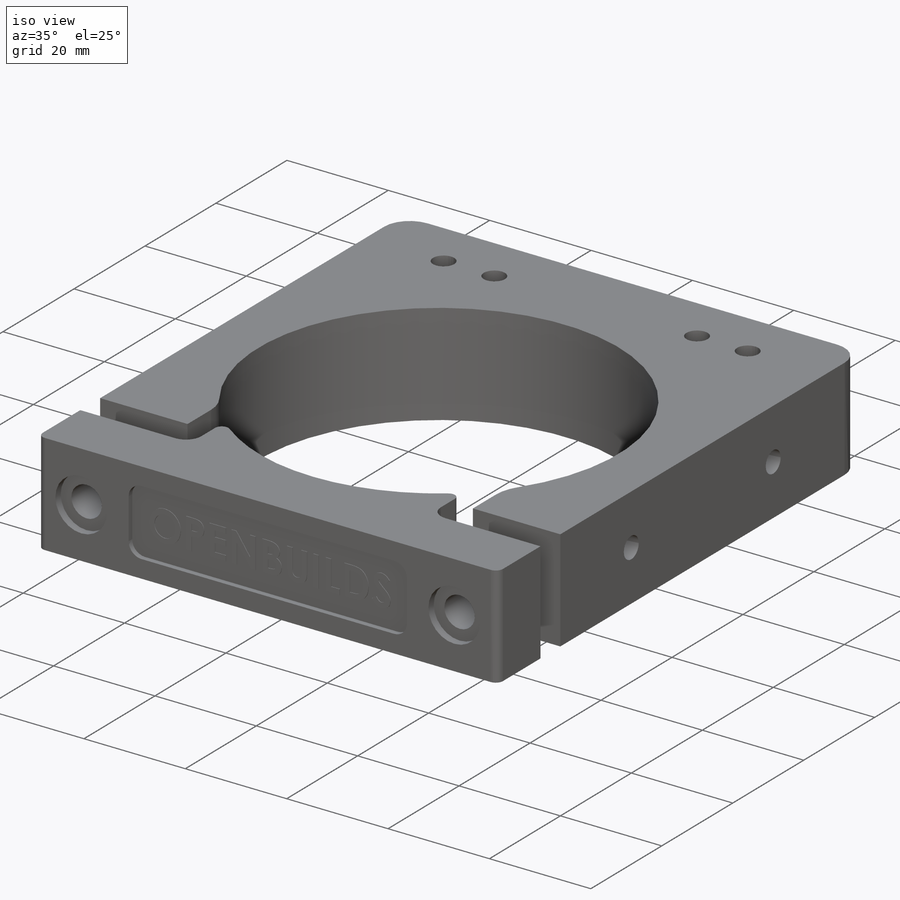
[diagram: iso view]
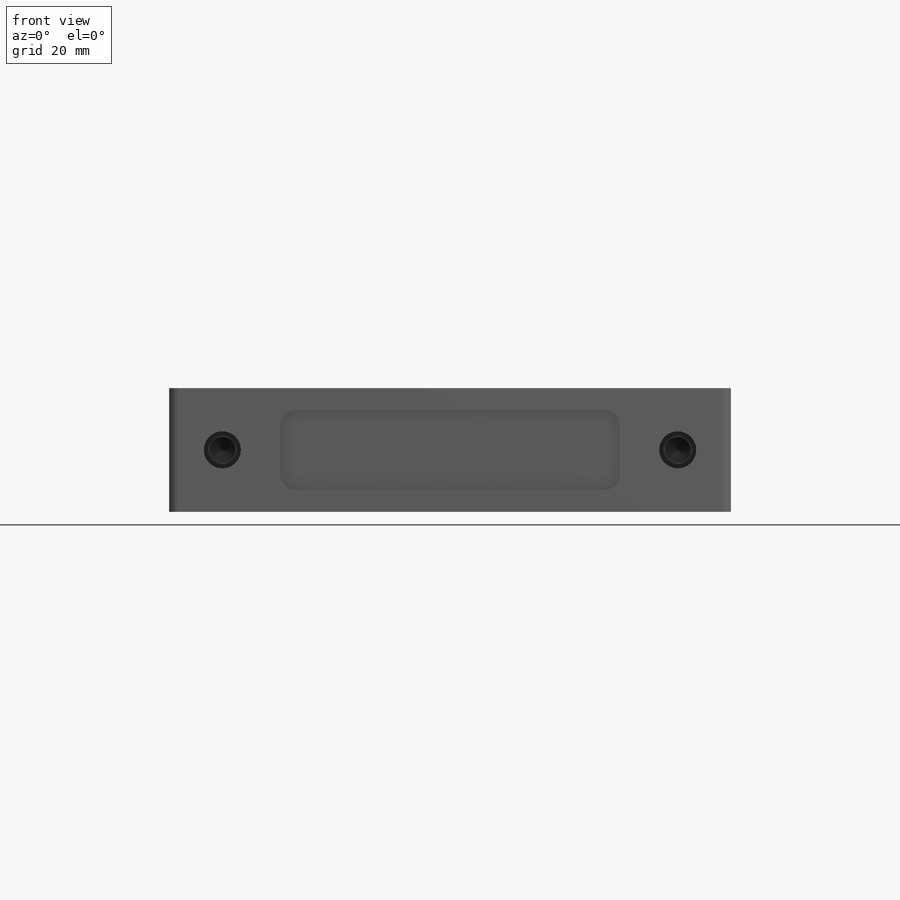
[diagram: front view]
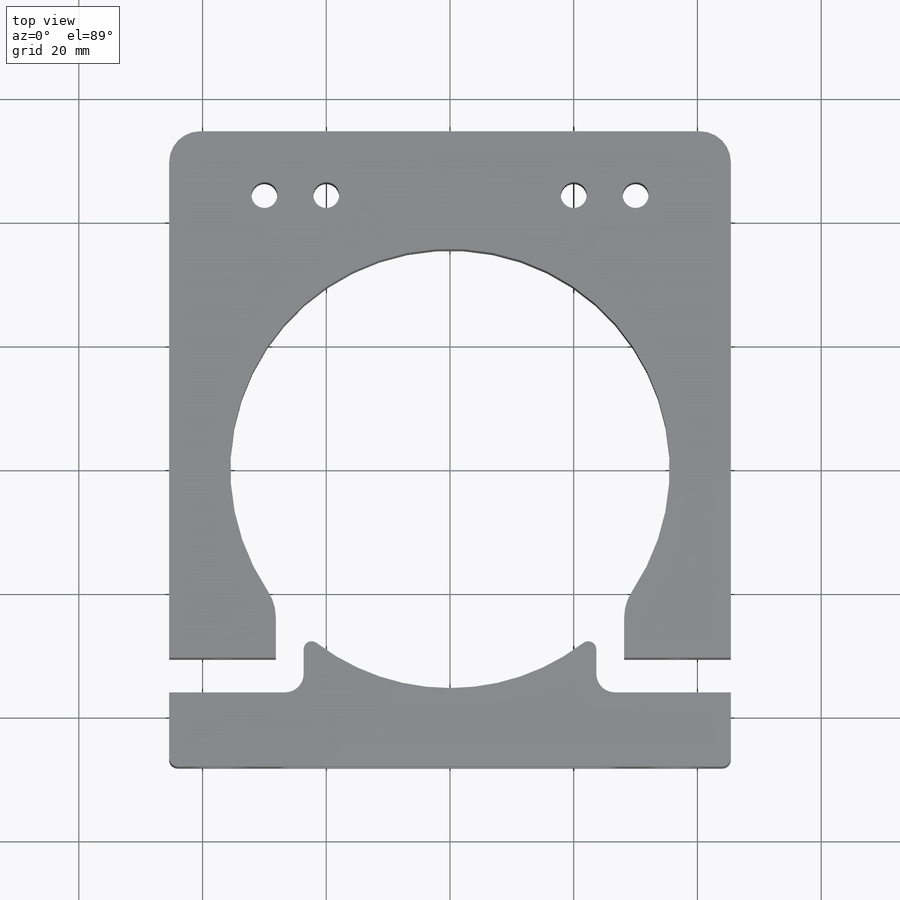
[diagram: top view]
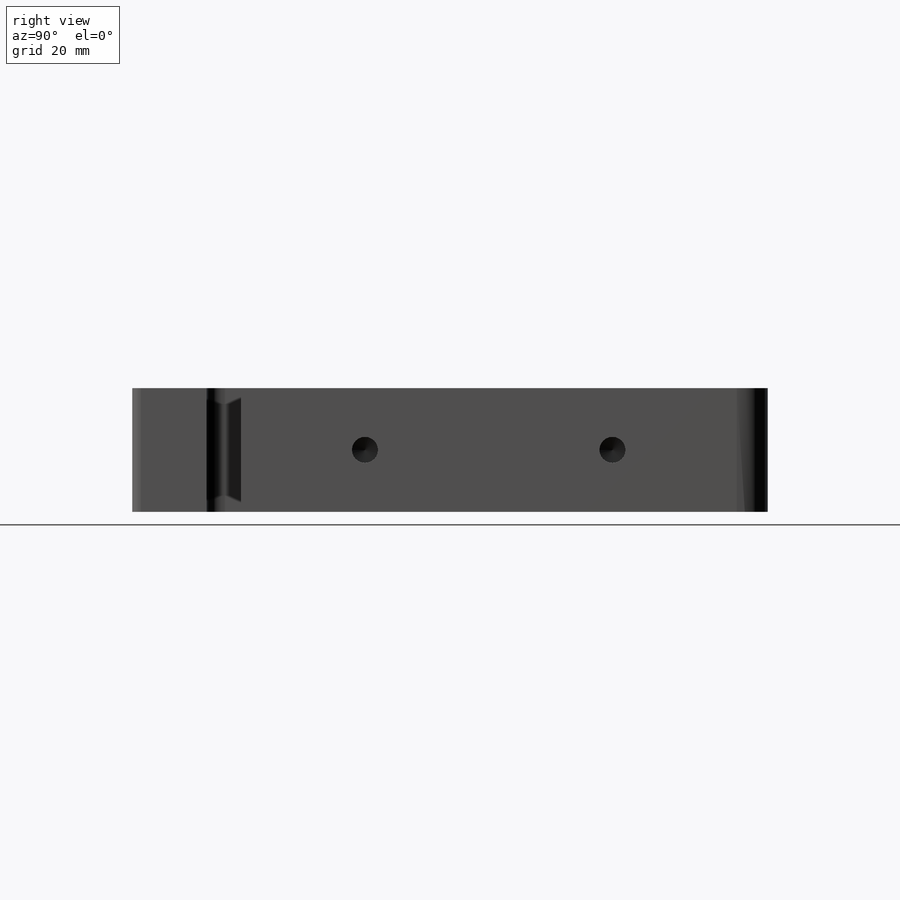
[diagram: right view]
SOLIDWORKS PART (.sldprt)
format: sldprt  version: not decoded by parser v0  size: 587,264 bytes
history: native  units: mm
features: sketch x13, hole x5, extrude x2, material x1, mirror x1, cut_extrude x1 (+13 scaffold rows collapsed)
feature tree (36):
  scaffold x13  (default folders/planes/origin — collapsed)
  material  "6061-T6 (SS)"
  sketch  "Sketch1"  dims[D1=71.0mm D9=5.0mm D10=3.0mm D11=1.3mm D12=7.5mm D13=1.4mm D2=90.8mm D3=85.1mm D4=54.5mm D5=17.25mm D6=47.3mm D7=12.0mm D8=12.7mm]
  extrude  "Boss-Extrude1"  Depth=20mm
  hole  "M5x0.8 Tapped Hole1"  Diameter=4.2mm Depth=20mm
  sketch  "Sketch3"  dims[D1=10.0mm D2=10.3mm D3=60.0mm]
  sketch  "Sketch2"  dims[hole-wizard template sketch: 60 standard entries collapsed; hole parameters kept: c18.Thru Tap Drill Depth=20.0mm]
  hole  "Hole1"  Diameter=6mm Depth=12mm
  sketch  "Sketch5"  dims[D1=73.6mm]
  sketch  "Sketch4"  dims[Diameter=6.0mm Depth=12.0mm C-Bore Diameter=10.2mm C-Bore Depth=1.5mm]
  hole  "M5x0.8 Tapped Hole2"  Diameter=4.2mm Depth=13mm
  sketch  "Sketch7"
  sketch  "Sketch6"  dims[hole-wizard template sketch: 47 standard entries collapsed; hole parameters kept: c15.Tap Drill Depth=13.0mm c15.D3=~14.816244mm c15.Drill Angle=118.0deg]
  hole  "M5x0.8 Tapped Hole3"  Diameter=4.2mm Depth=9mm
  sketch  "Sketch9"  dims[D1=20.0mm D2=40.0mm]
  sketch  "Sketch8"  dims[hole-wizard template sketch: 47 standard entries collapsed; hole parameters kept: c15.Tap Drill Depth=9.0mm c15.D3=~14.816244mm c15.Drill Angle=118.0deg]
  mirror  "Mirror1"
  hole  "M5x0.8 Tapped Hole4"  Diameter=4.2mm Depth=7mm
  sketch  "Sketch11"  dims[D1=60.0mm D2=20.0mm]
  sketch  "Sketch10"  dims[hole-wizard template sketch: 47 standard entries collapsed; hole parameters kept: c15.Tap Drill Depth=7.0mm c15.D3=~14.816244mm c15.Drill Angle=118.0deg]
  sketch  "Sketch12"  dims[D3=2.5mm D1=13.0mm D2=54.9mm]
  cut_extrude  "Cut-Extrude1"  Depth=1mm
  sketch  "Sketch13"  dims[D1=3.5mm D2=3.0mm]
  extrude  "Boss-Extrude2"  Depth=0.1mm
decode coverage: 20 of 22 modeling features carry decoded parameters
note: ~ marks probable driven/reference dimensions
summary: Diameter pulled from absorbed wizard sketch
note: suppression state not decoded; provenance and decode notes live in map.json
